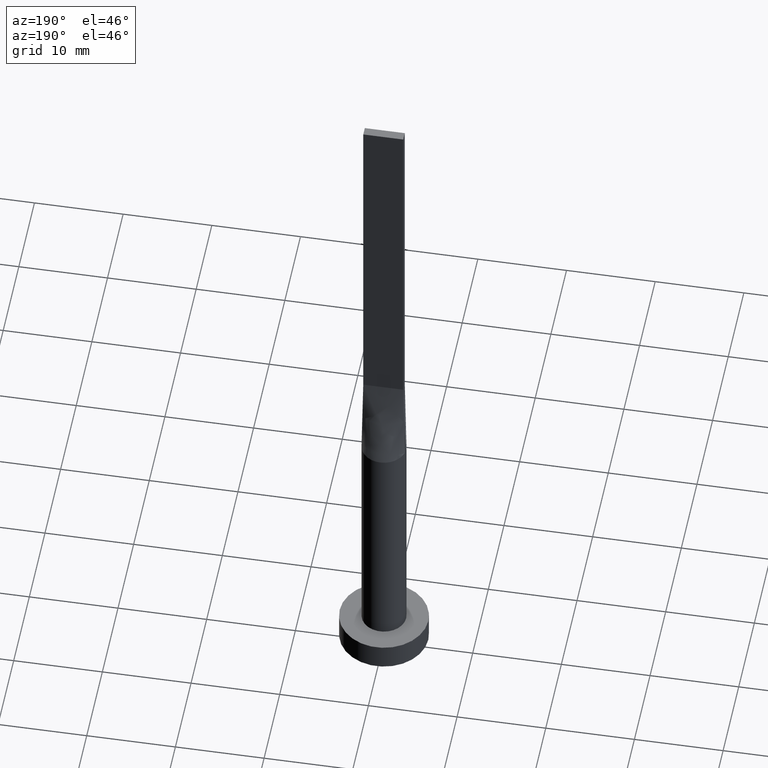
[diagram: clean part render]
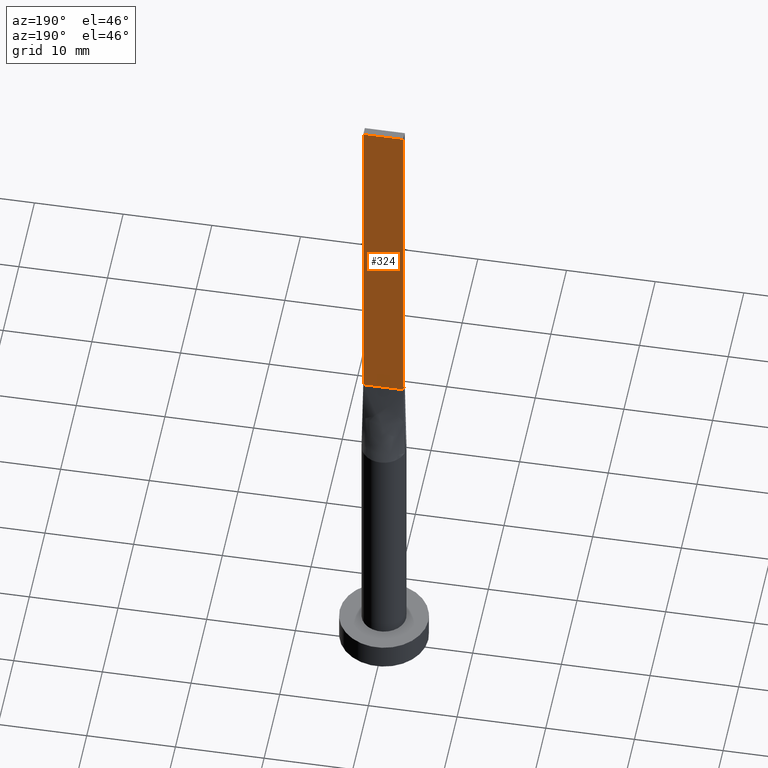
[diagram: same view with one face highlighted and labeled with its STEP entity id]
A machine part, auxiliary view. The second image highlights one B-rep face of the part: STEP entity #324.
In plain terms, the highlighted planar face has unit normal (0, -1, 0).
Its self-contained STEP definition (entity closure, byte-faithful):
#9 = EDGE_CURVE ( 'NONE', #513, #28, #87, .T. ) ;
#12 = LINE ( 'NONE', #379, #454 ) ;
#19 = DIRECTION ( 'NONE',  ( -1.000000000000000000, -0.000000000000000000, -0.000000000000000000 ) ) ;
#24 = FACE_OUTER_BOUND ( 'NONE', #306, .T. ) ;
#28 = VERTEX_POINT ( 'NONE', #508 ) ;
#67 = ORIENTED_EDGE ( 'NONE', *, *, #469, .T. ) ;
#75 = LINE ( 'NONE', #441, #224 ) ;
#87 = LINE ( 'NONE', #323, #222 ) ;
#90 = CARTESIAN_POINT ( 'NONE',  ( 2.249999999999999556, 0.5000000000000002220, 80.00000000000000000 ) ) ;
#110 = CARTESIAN_POINT ( 'NONE',  ( 2.249999999999999556, 0.5000000000000002220, 40.00000000000000000 ) ) ;
#114 = DIRECTION ( 'NONE',  ( 0.000000000000000000, -1.000000000000000000, 0.000000000000000000 ) ) ;
#126 = EDGE_CURVE ( 'NONE', #136, #513, #190, .T. ) ;
#136 = VERTEX_POINT ( 'NONE', #573 ) ;
#190 = LINE ( 'NONE', #90, #545 ) ;
#200 = VERTEX_POINT ( 'NONE', #110 ) ;
#222 = VECTOR ( 'NONE', #227, 1000.000000000000000 ) ;
#224 = VECTOR ( 'NONE', #19, 1000.000000000000000 ) ;
#227 = DIRECTION ( 'NONE',  ( -0.000000000000000000, -0.000000000000000000, -1.000000000000000000 ) ) ;
#250 = EDGE_CURVE ( 'NONE', #200, #28, #75, .T. ) ;
#275 = DIRECTION ( 'NONE',  ( -1.000000000000000000, 0.000000000000000000, 0.000000000000000000 ) ) ;
#302 = DIRECTION ( 'NONE',  ( 0.000000000000000000, -0.000000000000000000, -1.000000000000000000 ) ) ;
#306 = EDGE_LOOP ( 'NONE', ( #510, #523, #490, #67 ) ) ;
#312 = AXIS2_PLACEMENT_3D ( 'NONE', #350, #114, #302 ) ;
#323 = CARTESIAN_POINT ( 'NONE',  ( -2.249999999999999556, 0.5000000000000002220, 80.00000000000000000 ) ) ;
#324 = ADVANCED_FACE ( 'NONE', ( #24 ), #566, .F. ) ;
#350 = CARTESIAN_POINT ( 'NONE',  ( 2.249999999999999556, 0.5000000000000002220, 80.00000000000000000 ) ) ;
#379 = CARTESIAN_POINT ( 'NONE',  ( 2.249999999999999556, 0.5000000000000002220, 80.00000000000000000 ) ) ;
#441 = CARTESIAN_POINT ( 'NONE',  ( -2.249999999999999556, 0.5000000000000002220, 40.00000000000000000 ) ) ;
#454 = VECTOR ( 'NONE', #517, 1000.000000000000000 ) ;
#469 = EDGE_CURVE ( 'NONE', #136, #200, #12, .T. ) ;
#490 = ORIENTED_EDGE ( 'NONE', *, *, #126, .F. ) ;
#508 = CARTESIAN_POINT ( 'NONE',  ( -2.249999999999999556, 0.5000000000000002220, 40.00000000000000000 ) ) ;
#510 = ORIENTED_EDGE ( 'NONE', *, *, #250, .T. ) ;
#513 = VERTEX_POINT ( 'NONE', #524 ) ;
#517 = DIRECTION ( 'NONE',  ( -0.000000000000000000, -0.000000000000000000, -1.000000000000000000 ) ) ;
#523 = ORIENTED_EDGE ( 'NONE', *, *, #9, .F. ) ;
#524 = CARTESIAN_POINT ( 'NONE',  ( -2.249999999999999556, 0.5000000000000002220, 80.00000000000000000 ) ) ;
#545 = VECTOR ( 'NONE', #275, 1000.000000000000000 ) ;
#566 = PLANE ( 'NONE',  #312 ) ;
#573 = CARTESIAN_POINT ( 'NONE',  ( 2.249999999999999556, 0.5000000000000002220, 80.00000000000000000 ) ) ;